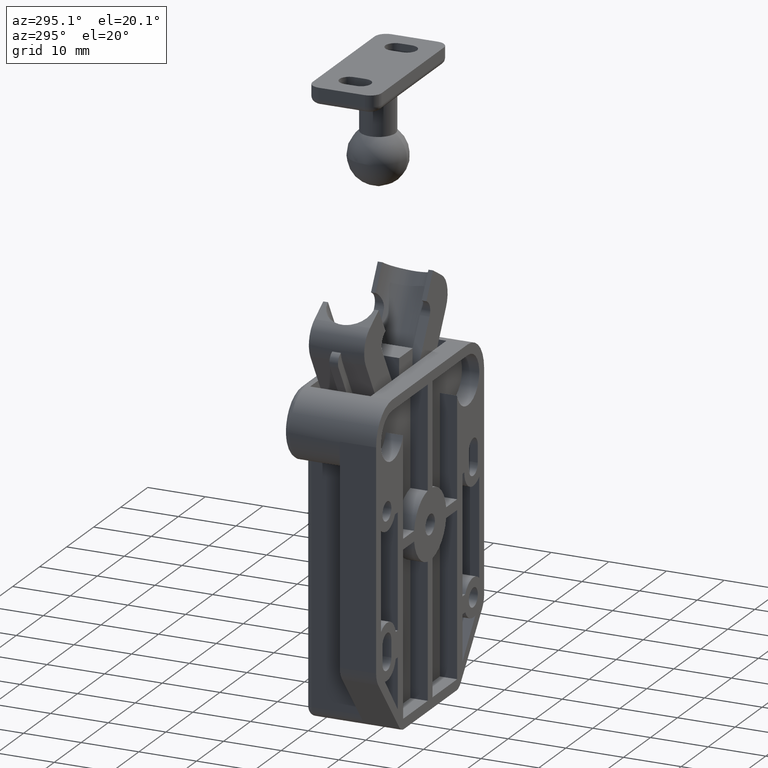
[diagram: clean part render]
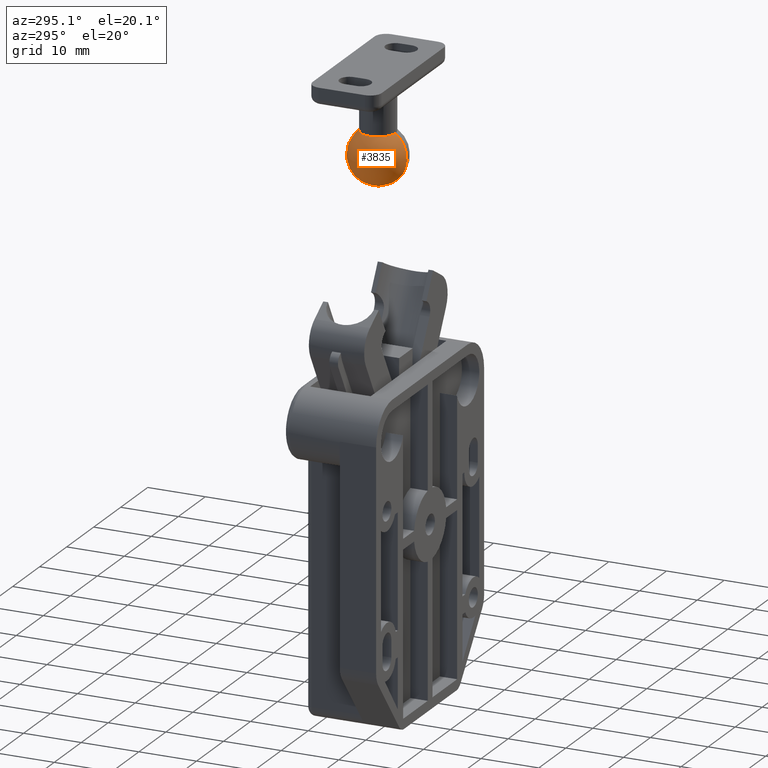
[diagram: same view with one face highlighted and labeled with its STEP entity id]
A machine part, auxiliary view. The second image highlights one B-rep face of the part: STEP entity #3835.
In plain terms, the highlighted spherical surface has radius 5 mm.
Its self-contained STEP definition (entity closure, byte-faithful):
#156 = DIRECTION ( 'NONE',  ( 0.0000000000000000000, 0.0000000000000000000, -1.000000000000000000 ) ) ;
#246 = AXIS2_PLACEMENT_3D ( 'NONE', #8449, #4271, #156 ) ;
#535 = AXIS2_PLACEMENT_3D ( 'NONE', #3137, #5435, #3610 ) ;
#565 = VERTEX_POINT ( 'NONE', #4391 ) ;
#1189 = EDGE_CURVE ( 'NONE', #8181, #8345, #2239, .T. ) ;
#2099 = CARTESIAN_POINT ( 'NONE',  ( 102.1906854006600000, 132.2423681696272100, 9.000000000000000000 ) ) ;
#2179 = CIRCLE ( 'NONE', #4948, 2.999999999999935200 ) ;
#2237 = CARTESIAN_POINT ( 'NONE',  ( 107.1906854006600000, 132.2423681696272100, 9.000000000000000000 ) ) ;
#2239 = CIRCLE ( 'NONE', #535, 4.999999999999999100 ) ;
#2864 = FACE_OUTER_BOUND ( 'NONE', #4895, .T. ) ;
#2967 = DIRECTION ( 'NONE',  ( 0.0000000000000000000, 0.0000000000000000000, 1.000000000000000000 ) ) ;
#3137 = CARTESIAN_POINT ( 'NONE',  ( 107.1906854006600000, 132.2423681696272100, 9.000000000000000000 ) ) ;
#3271 = AXIS2_PLACEMENT_3D ( 'NONE', #2237, #5030, #2967 ) ;
#3310 = CARTESIAN_POINT ( 'NONE',  ( 111.1906854006602000, 132.2423681696272100, 6.000000000000163400 ) ) ;
#3610 = DIRECTION ( 'NONE',  ( 0.0000000000000000000, 0.0000000000000000000, 1.000000000000000000 ) ) ;
#3835 = ADVANCED_FACE ( 'NONE', ( #2864 ), #8183, .T. ) ;
#3987 = DIRECTION ( 'NONE',  ( 1.000000000000000000, 0.0000000000000000000, 0.0000000000000000000 ) ) ;
#4271 = DIRECTION ( 'NONE',  ( 0.0000000000000000000, -1.000000000000000000, 0.0000000000000000000 ) ) ;
#4391 = CARTESIAN_POINT ( 'NONE',  ( 111.1906854006602000, 132.2423681696272100, 11.99999999999983500 ) ) ;
#4895 = EDGE_LOOP ( 'NONE', ( #8600, #7880, #5836 ) ) ;
#4948 = AXIS2_PLACEMENT_3D ( 'NONE', #8160, #3987, #8856 ) ;
#5030 = DIRECTION ( 'NONE',  ( 0.0000000000000000000, 1.000000000000000000, -0.0000000000000000000 ) ) ;
#5435 = DIRECTION ( 'NONE',  ( 0.0000000000000000000, 1.000000000000000000, 1.224646799147353200E-016 ) ) ;
#5740 = EDGE_CURVE ( 'NONE', #565, #8181, #2179, .T. ) ;
#5836 = ORIENTED_EDGE ( 'NONE', *, *, #8430, .T. ) ;
#7241 = CIRCLE ( 'NONE', #246, 5.000000000000000000 ) ;
#7880 = ORIENTED_EDGE ( 'NONE', *, *, #5740, .F. ) ;
#8160 = CARTESIAN_POINT ( 'NONE',  ( 111.1906854006602000, 132.2423681696272100, 9.000000000000000000 ) ) ;
#8181 = VERTEX_POINT ( 'NONE', #3310 ) ;
#8183 = SPHERICAL_SURFACE ( 'NONE', #3271, 5.000000000000000000 ) ;
#8345 = VERTEX_POINT ( 'NONE', #2099 ) ;
#8430 = EDGE_CURVE ( 'NONE', #565, #8345, #7241, .T. ) ;
#8449 = CARTESIAN_POINT ( 'NONE',  ( 107.1906854006600000, 132.2423681696272100, 9.000000000000000000 ) ) ;
#8600 = ORIENTED_EDGE ( 'NONE', *, *, #1189, .F. ) ;
#8856 = DIRECTION ( 'NONE',  ( 0.0000000000000000000, 0.0000000000000000000, -1.000000000000000000 ) ) ;